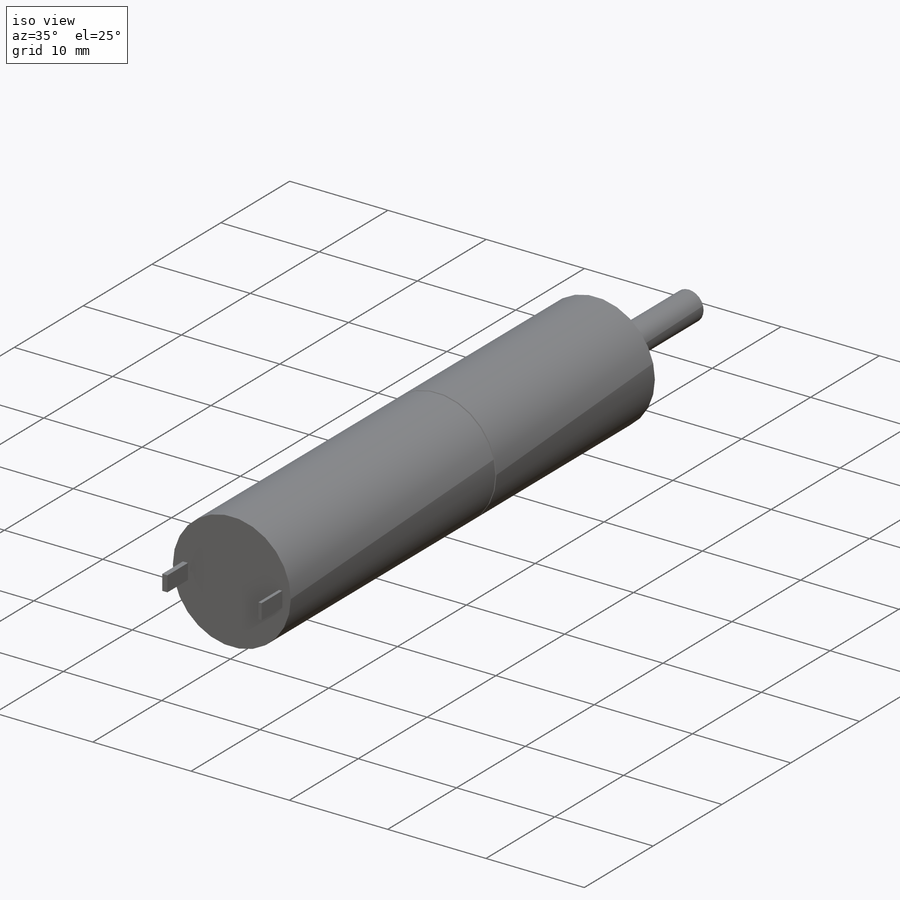
[diagram: iso view]
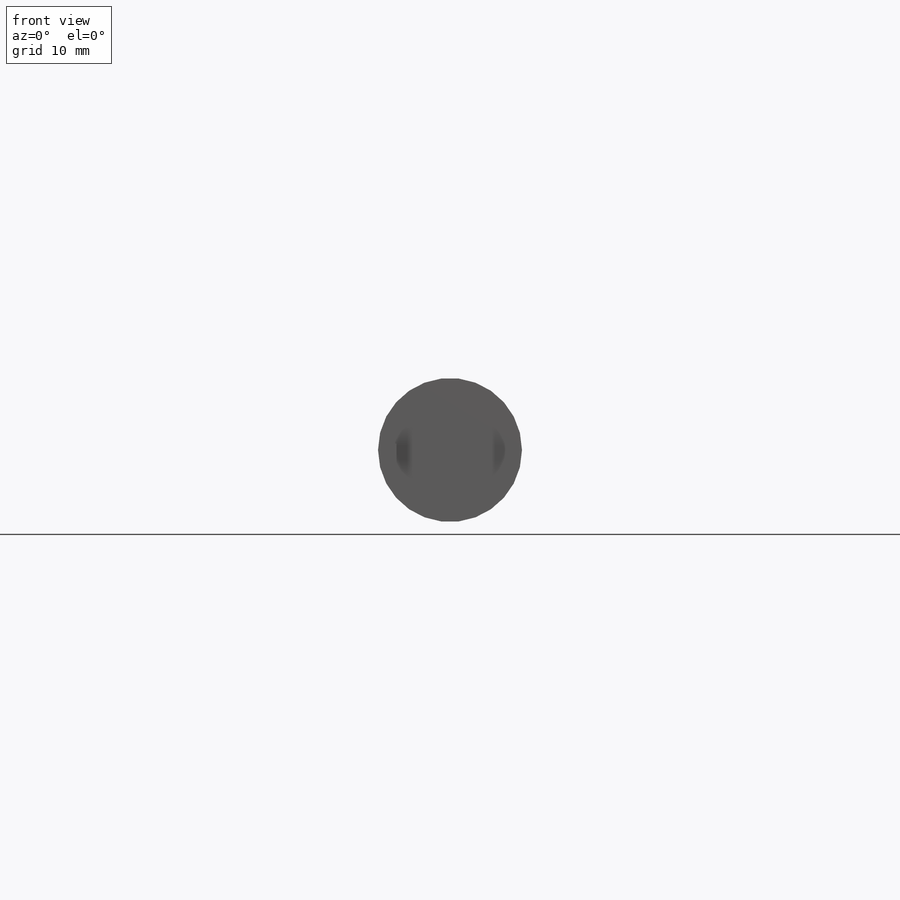
[diagram: front view]
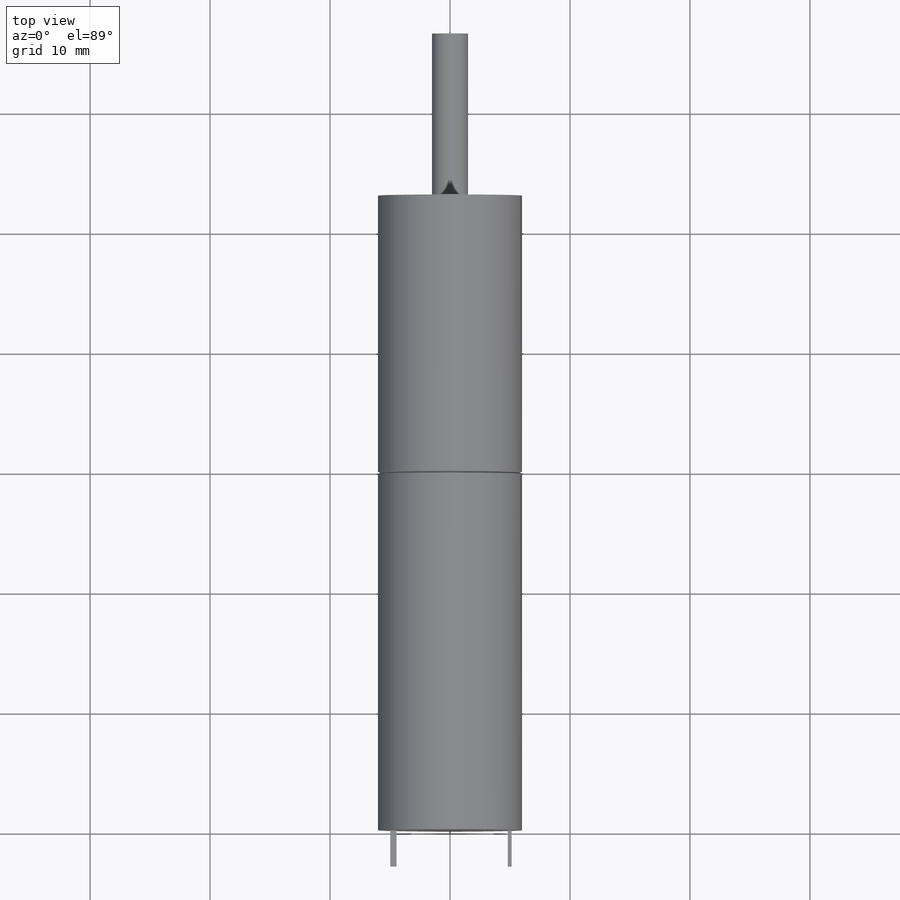
[diagram: top view]
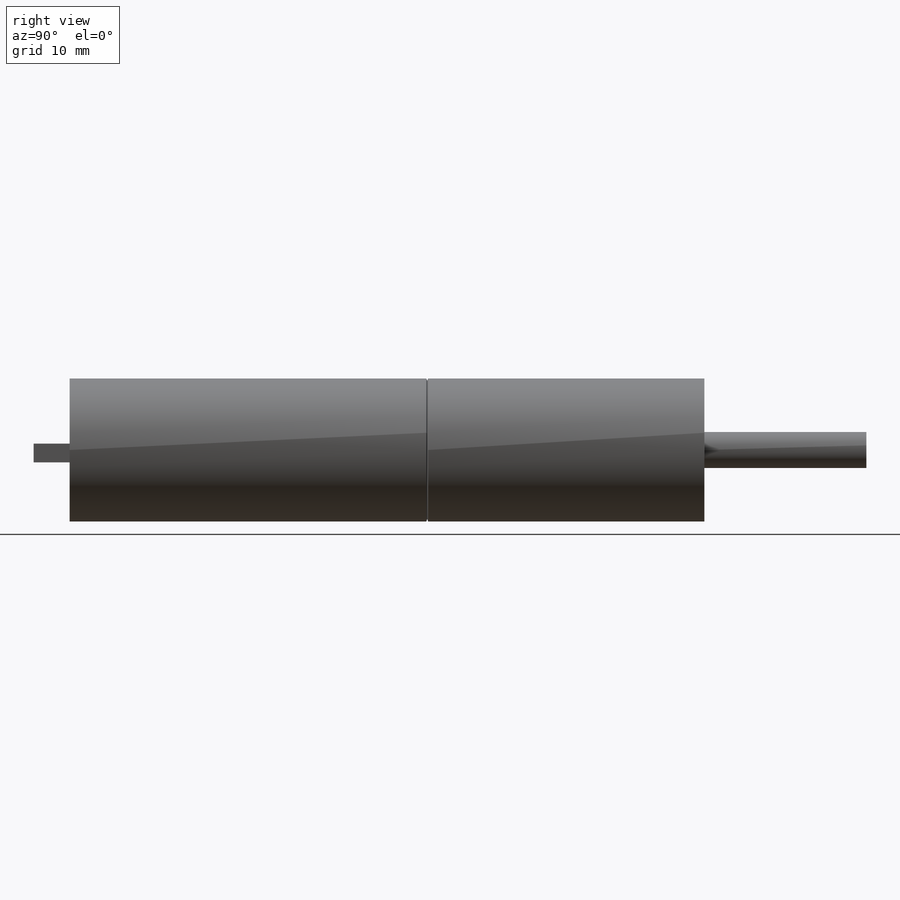
[diagram: right view]
SOLIDWORKS PART (.sldprt)
format: sldprt  version: not decoded by parser v0  size: 146,944 bytes
history: native  units: mm
features: sketch x5, extrude x3, material x1, cut_extrude x1, cut_revolve x1 (+15 scaffold rows collapsed)
feature tree (26):
  scaffold x15  (default folders/planes/origin — collapsed)
  material  "Material <not specified>"
  sketch  "Sketch1"  dims[D1=12.0mm]
  extrude  "Extrude1"  Depth=29.8mm
  sketch  "Sketch2"
  extrude  "Extrude2"  Depth=3mm
  sketch  "Sketch3"  dims[D1=3.0mm]
  extrude  "Extrude3"  Depth=13.5mm
  sketch  "Sketch4"  dims[D1=2.0mm D2=2.0mm D3=9.5mm]
  cut_extrude  "Cut-Extrude1"  Depth=13.5mm
  sketch  "Sketch6"  dims[c1.D2=2.5mm c1.D1=0.2mm c2.D2=~1.789838mm c3.D2=20.0deg c3.D3=~9.008648mm c4.D3=20.0deg]
  cut_revolve  "Cut-Revolve1"  Angle=360deg
decode coverage: 9 of 10 modeling features carry decoded parameters
note: ~ marks probable driven/reference dimensions
note: suppression state not decoded; provenance and decode notes live in map.json
